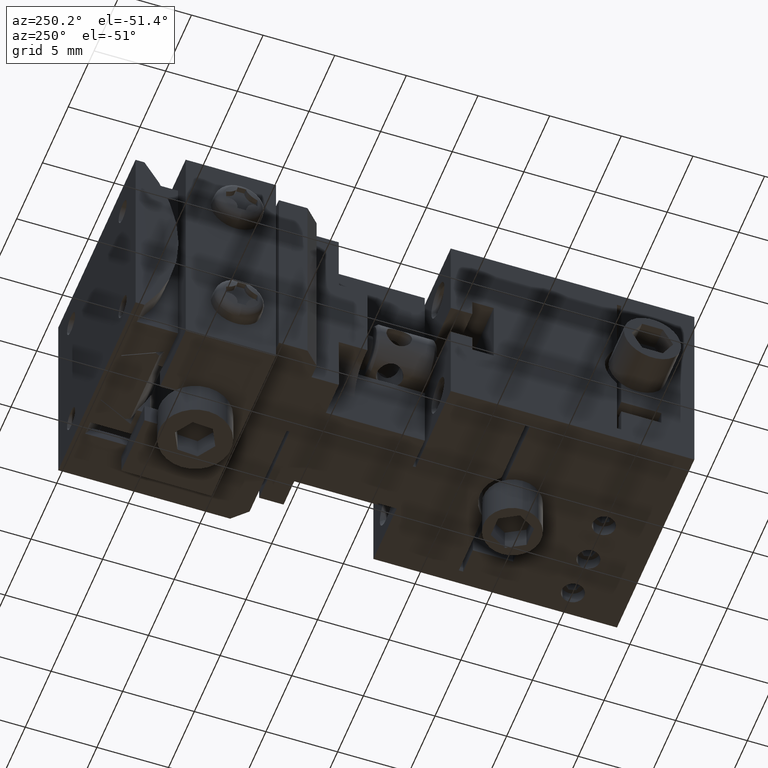
[diagram: clean part render]
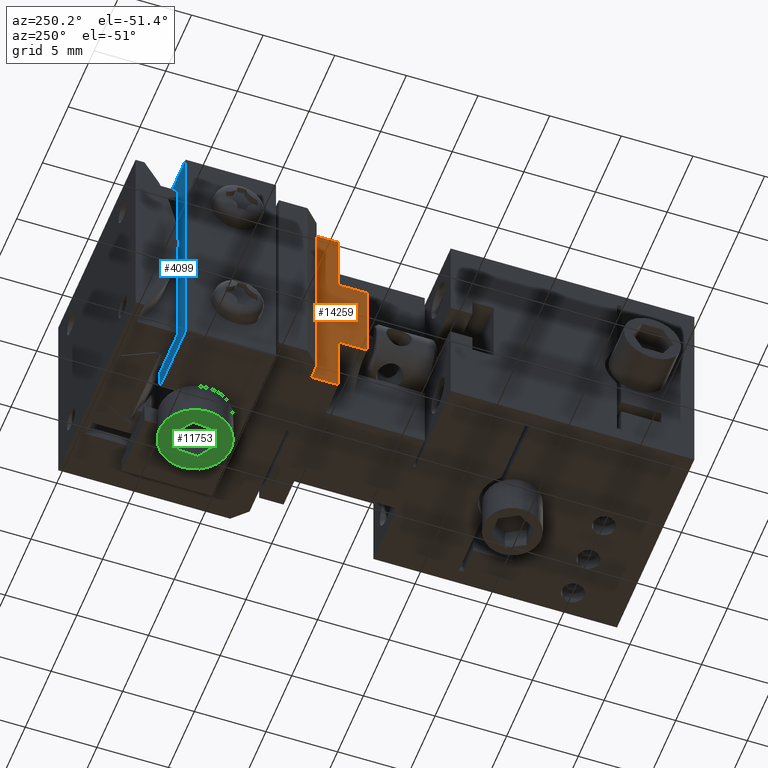
[diagram: same view with three faces highlighted in distinct colors, each labeled with its STEP entity id]
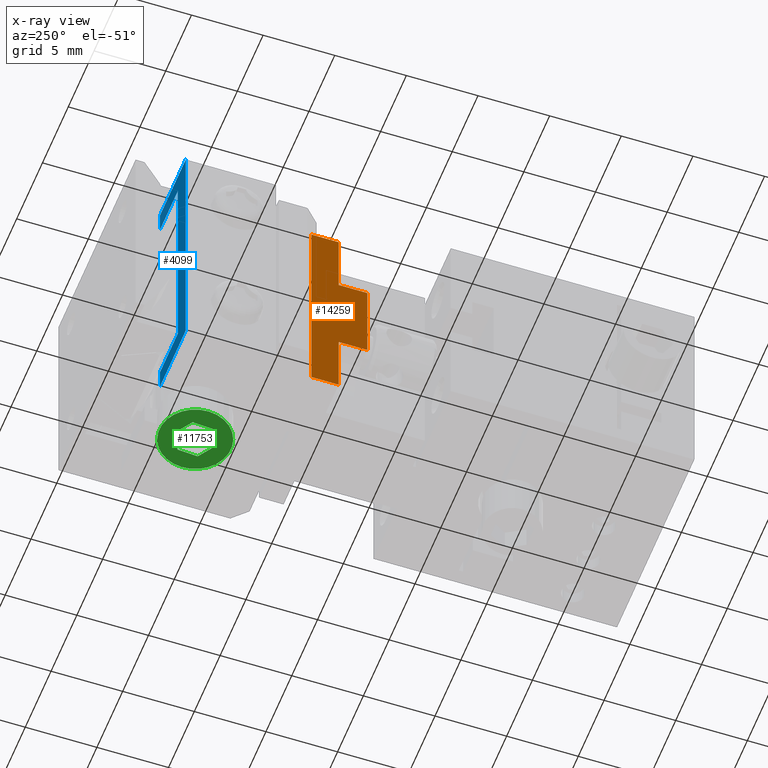
[diagram: x-ray of the same camera — body ghosted, the three highlighted faces saturated]
A machine part, auxiliary view with three faces highlighted in distinct colors.
The next image is the same camera in x-ray (body ghosted, the three faces saturated) — at least one of them is partly hidden behind the body in this view.
Their STEP definitions:

[orange] entity #14259 — the highlighted planar face has unit normal (1, -0, -0).
#746 = CARTESIAN_POINT ( 'NONE',  ( -8.326672999999999728E-16, -6.361093999999999072E-17, 0.000000000000000000 ) ) ;
#1010 = DIRECTION ( 'NONE',  ( 1.000000000000000000, 0.000000000000000000, 0.000000000000000000 ) ) ;
#1693 = ORIENTED_EDGE ( 'NONE', *, *, #15028, .T. ) ;
#2166 = CARTESIAN_POINT ( 'NONE',  ( -2.500000000000000000, -3.000000000000000000, 0.000000000000000000 ) ) ;
#2191 = ORIENTED_EDGE ( 'NONE', *, *, #16659, .T. ) ;
#2663 = VERTEX_POINT ( 'NONE', #15204 ) ;
#2708 = FACE_OUTER_BOUND ( 'NONE', #20242, .T. ) ;
#2846 = PLANE ( 'NONE',  #25429 ) ;
#3212 = EDGE_CURVE ( 'NONE', #8935, #12641, #21702, .T. ) ;
#3660 = VERTEX_POINT ( 'NONE', #2166 ) ;
#3770 = DIRECTION ( 'NONE',  ( 1.000000000000000000, 0.000000000000000000, 0.000000000000000000 ) ) ;
#4613 = CARTESIAN_POINT ( 'NONE',  ( -0.5000000000000000000, 3.000000000000000000, 0.000000000000000000 ) ) ;
#4740 = DIRECTION ( 'NONE',  ( 0.000000000000000000, -1.000000000000000000, 0.000000000000000000 ) ) ;
#4794 = ORIENTED_EDGE ( 'NONE', *, *, #22403, .T. ) ;
#5080 = VERTEX_POINT ( 'NONE', #17567 ) ;
#5568 = ORIENTED_EDGE ( 'NONE', *, *, #3212, .F. ) ;
#5654 = VECTOR ( 'NONE', #3770, 1000.000000000000000 ) ;
#5703 = CARTESIAN_POINT ( 'NONE',  ( -2.500000000000000000, 7.500000000000000000, 0.000000000000000000 ) ) ;
#7433 = DIRECTION ( 'NONE',  ( 0.000000000000000000, -1.000000000000000000, 0.000000000000000000 ) ) ;
#7713 = CARTESIAN_POINT ( 'NONE',  ( -0.5000000000000000000, -3.000000000000000000, 0.000000000000000000 ) ) ;
#8935 = VERTEX_POINT ( 'NONE', #18550 ) ;
#10962 = VECTOR ( 'NONE', #7433, 1000.000000000000000 ) ;
#11015 = VECTOR ( 'NONE', #17571, 1000.000000000000000 ) ;
#11219 = CARTESIAN_POINT ( 'NONE',  ( -4.400000000000000355, 7.500000000000000000, 0.000000000000000000 ) ) ;
#12641 = VERTEX_POINT ( 'NONE', #20766 ) ;
#12706 = LINE ( 'NONE', #4613, #21916 ) ;
#13248 = CARTESIAN_POINT ( 'NONE',  ( -2.500000000000000000, 7.500000000000000000, 0.000000000000000000 ) ) ;
#13308 = CARTESIAN_POINT ( 'NONE',  ( -2.500000000000000000, 3.000000000000000000, 0.000000000000000000 ) ) ;
#13592 = VECTOR ( 'NONE', #1010, 1000.000000000000000 ) ;
#13824 = CARTESIAN_POINT ( 'NONE',  ( -4.400000000000000355, -7.500000000000000000, 0.000000000000000000 ) ) ;
#13934 = DIRECTION ( 'NONE',  ( -1.000000000000000000, 0.000000000000000000, 0.000000000000000000 ) ) ;
#14259 = ADVANCED_FACE ( 'NONE', ( #2708 ), #2846, .F. ) ;
#14995 = ORIENTED_EDGE ( 'NONE', *, *, #20207, .F. ) ;
#15028 = EDGE_CURVE ( 'NONE', #3660, #12641, #15159, .T. ) ;
#15159 = LINE ( 'NONE', #17519, #23347 ) ;
#15204 = CARTESIAN_POINT ( 'NONE',  ( -2.500000000000000000, 7.500000000000000000, 0.000000000000000000 ) ) ;
#15295 = DIRECTION ( 'NONE',  ( 0.000000000000000000, -1.000000000000000000, 0.000000000000000000 ) ) ;
#15818 = DIRECTION ( 'NONE',  ( -1.000000000000000000, 0.000000000000000000, 0.000000000000000000 ) ) ;
#15903 = VERTEX_POINT ( 'NONE', #19425 ) ;
#16659 = EDGE_CURVE ( 'NONE', #5080, #3660, #17653, .T. ) ;
#17007 = ORIENTED_EDGE ( 'NONE', *, *, #22145, .T. ) ;
#17278 = VERTEX_POINT ( 'NONE', #23734 ) ;
#17494 = CARTESIAN_POINT ( 'NONE',  ( -2.500000000000000000, 3.000000000000000000, 0.000000000000000000 ) ) ;
#17519 = CARTESIAN_POINT ( 'NONE',  ( -2.500000000000000000, -3.000000000000000000, 0.000000000000000000 ) ) ;
#17567 = CARTESIAN_POINT ( 'NONE',  ( -0.5000000000000000000, -3.000000000000000000, 0.000000000000000000 ) ) ;
#17571 = DIRECTION ( 'NONE',  ( 0.000000000000000000, -1.000000000000000000, 0.000000000000000000 ) ) ;
#17653 = LINE ( 'NONE', #7713, #18408 ) ;
#17656 = VERTEX_POINT ( 'NONE', #17494 ) ;
#18408 = VECTOR ( 'NONE', #15818, 1000.000000000000000 ) ;
#18436 = DIRECTION ( 'NONE',  ( 0.000000000000000000, 0.000000000000000000, 1.000000000000000000 ) ) ;
#18550 = CARTESIAN_POINT ( 'NONE',  ( -4.400000000000000355, -7.500000000000000000, 0.000000000000000000 ) ) ;
#18957 = LINE ( 'NONE', #13308, #13592 ) ;
#19332 = LINE ( 'NONE', #11219, #10962 ) ;
#19425 = CARTESIAN_POINT ( 'NONE',  ( -4.400000000000000355, 7.500000000000000000, 0.000000000000000000 ) ) ;
#20207 = EDGE_CURVE ( 'NONE', #15903, #8935, #19332, .T. ) ;
#20242 = EDGE_LOOP ( 'NONE', ( #4794, #2191, #1693, #5568, #14995, #25877, #17007, #20474 ) ) ;
#20474 = ORIENTED_EDGE ( 'NONE', *, *, #24247, .T. ) ;
#20766 = CARTESIAN_POINT ( 'NONE',  ( -2.500000000000000000, -7.500000000000000000, 0.000000000000000000 ) ) ;
#21683 = LINE ( 'NONE', #5703, #24558 ) ;
#21702 = LINE ( 'NONE', #13824, #5654 ) ;
#21916 = VECTOR ( 'NONE', #4740, 1000.000000000000000 ) ;
#22145 = EDGE_CURVE ( 'NONE', #2663, #17656, #23206, .T. ) ;
#22359 = DIRECTION ( 'NONE',  ( 1.000000000000000000, 0.000000000000000000, 0.000000000000000000 ) ) ;
#22403 = EDGE_CURVE ( 'NONE', #17278, #5080, #12706, .T. ) ;
#23206 = LINE ( 'NONE', #13248, #11015 ) ;
#23347 = VECTOR ( 'NONE', #15295, 1000.000000000000000 ) ;
#23734 = CARTESIAN_POINT ( 'NONE',  ( -0.5000000000000000000, 3.000000000000000000, 0.000000000000000000 ) ) ;
#24247 = EDGE_CURVE ( 'NONE', #17656, #17278, #18957, .T. ) ;
#24558 = VECTOR ( 'NONE', #13934, 1000.000000000000000 ) ;
#25429 = AXIS2_PLACEMENT_3D ( 'NONE', #746, #18436, #22359 ) ;
#25805 = EDGE_CURVE ( 'NONE', #2663, #15903, #21683, .T. ) ;
#25877 = ORIENTED_EDGE ( 'NONE', *, *, #25805, .F. ) ;

[blue] entity #4099 — the highlighted planar face has unit normal (0, 1, -0).
#145 = DIRECTION ( 'NONE',  ( 0.000000000000000000, -1.000000000000000000, 0.000000000000000000 ) ) ;
#280 = CARTESIAN_POINT ( 'NONE',  ( -7.500000000000000000, 5.000000000000000000, -13.50000000000000000 ) ) ;
#291 = DIRECTION ( 'NONE',  ( 0.000000000000000000, 1.000000000000000000, 0.000000000000000000 ) ) ;
#339 = VECTOR ( 'NONE', #1159, 1000.000000000000000 ) ;
#1071 = VERTEX_POINT ( 'NONE', #23760 ) ;
#1159 = DIRECTION ( 'NONE',  ( 0.000000000000000000, -1.000000000000000000, 0.000000000000000000 ) ) ;
#1204 = CARTESIAN_POINT ( 'NONE',  ( -9.000000000000000000, 1.500000000000000000, -13.50000000000000000 ) ) ;
#1858 = FACE_OUTER_BOUND ( 'NONE', #17833, .T. ) ;
#3217 = CARTESIAN_POINT ( 'NONE',  ( -7.500000000000000000, 2.000000000000000000, -13.50000000000000000 ) ) ;
#3285 = ORIENTED_EDGE ( 'NONE', *, *, #22319, .F. ) ;
#3321 = DIRECTION ( 'NONE',  ( 1.000000000000000000, 0.000000000000000000, 0.000000000000000000 ) ) ;
#3520 = LINE ( 'NONE', #13052, #339 ) ;
#4099 = ADVANCED_FACE ( 'NONE', ( #1858 ), #24129, .T. ) ;
#4138 = CARTESIAN_POINT ( 'NONE',  ( 9.000000000000000000, 6.500000000000000000, -13.50000000000000000 ) ) ;
#4239 = LINE ( 'NONE', #10232, #17737 ) ;
#4532 = VERTEX_POINT ( 'NONE', #16225 ) ;
#4869 = CARTESIAN_POINT ( 'NONE',  ( -9.000000000000000000, 6.500000000000000000, -13.50000000000000000 ) ) ;
#5050 = EDGE_CURVE ( 'NONE', #12093, #21173, #23079, .T. ) ;
#5064 = LINE ( 'NONE', #19459, #6248 ) ;
#5120 = VERTEX_POINT ( 'NONE', #13769 ) ;
#5309 = LINE ( 'NONE', #3217, #9174 ) ;
#5618 = LINE ( 'NONE', #8940, #8033 ) ;
#5997 = EDGE_CURVE ( 'NONE', #1071, #24163, #22282, .T. ) ;
#6181 = DIRECTION ( 'NONE',  ( 0.000000000000000000, 0.000000000000000000, 1.000000000000000000 ) ) ;
#6248 = VECTOR ( 'NONE', #9239, 1000.000000000000000 ) ;
#6995 = CARTESIAN_POINT ( 'NONE',  ( 7.500000000000000000, 5.000000000000000000, -13.50000000000000000 ) ) ;
#7035 = EDGE_CURVE ( 'NONE', #24163, #21173, #5309, .T. ) ;
#7256 = LINE ( 'NONE', #21267, #17211 ) ;
#7716 = VERTEX_POINT ( 'NONE', #21310 ) ;
#8033 = VECTOR ( 'NONE', #17661, 1000.000000000000000 ) ;
#8275 = ORIENTED_EDGE ( 'NONE', *, *, #20632, .F. ) ;
#8708 = LINE ( 'NONE', #23754, #14923 ) ;
#8789 = CARTESIAN_POINT ( 'NONE',  ( -7.500000000000000000, 1.500000000000000000, -13.50000000000000000 ) ) ;
#8940 = CARTESIAN_POINT ( 'NONE',  ( 7.500000000000000000, 2.000000000000000000, -13.50000000000000000 ) ) ;
#9174 = VECTOR ( 'NONE', #21007, 1000.000000000000000 ) ;
#9239 = DIRECTION ( 'NONE',  ( 0.000000000000000000, 1.000000000000000000, 0.000000000000000000 ) ) ;
#10232 = CARTESIAN_POINT ( 'NONE',  ( -9.000000000000000000, 1.500000000000000000, -13.50000000000000000 ) ) ;
#12093 = VERTEX_POINT ( 'NONE', #19653 ) ;
#13052 = CARTESIAN_POINT ( 'NONE',  ( 9.000000000000000000, 6.500000000000000000, -13.50000000000000000 ) ) ;
#13211 = VERTEX_POINT ( 'NONE', #6995 ) ;
#13304 = EDGE_CURVE ( 'NONE', #7716, #24623, #8708, .T. ) ;
#13769 = CARTESIAN_POINT ( 'NONE',  ( 7.500000000000000000, 2.000000000000000000, -13.50000000000000000 ) ) ;
#14773 = CARTESIAN_POINT ( 'NONE',  ( -7.500000000000000000, 2.000000000000000000, -13.50000000000000000 ) ) ;
#14923 = VECTOR ( 'NONE', #3321, 1000.000000000000000 ) ;
#15059 = EDGE_CURVE ( 'NONE', #24927, #24623, #3520, .T. ) ;
#15375 = EDGE_CURVE ( 'NONE', #7716, #5120, #5064, .T. ) ;
#16194 = DIRECTION ( 'NONE',  ( 1.000000000000000000, 0.000000000000000000, 0.000000000000000000 ) ) ;
#16225 = CARTESIAN_POINT ( 'NONE',  ( -9.000000000000000000, 6.500000000000000000, -13.50000000000000000 ) ) ;
#16375 = LINE ( 'NONE', #4869, #19781 ) ;
#16431 = ORIENTED_EDGE ( 'NONE', *, *, #15375, .F. ) ;
#16457 = ORIENTED_EDGE ( 'NONE', *, *, #21150, .F. ) ;
#17211 = VECTOR ( 'NONE', #17470, 1000.000000000000000 ) ;
#17470 = DIRECTION ( 'NONE',  ( -1.000000000000000000, 0.000000000000000000, 0.000000000000000000 ) ) ;
#17661 = DIRECTION ( 'NONE',  ( 0.000000000000000000, 1.000000000000000000, 0.000000000000000000 ) ) ;
#17737 = VECTOR ( 'NONE', #291, 1000.000000000000000 ) ;
#17833 = EDGE_LOOP ( 'NONE', ( #25555, #24266, #16457, #3285, #24528, #25720, #24768, #8275, #19178, #16431 ) ) ;
#17973 = CARTESIAN_POINT ( 'NONE',  ( 2.775557999999999849E-16, 2.039156626506034797, -13.50000000000000000 ) ) ;
#18237 = DIRECTION ( 'NONE',  ( 1.000000000000000000, 0.000000000000000000, 0.000000000000000000 ) ) ;
#19178 = ORIENTED_EDGE ( 'NONE', *, *, #19849, .F. ) ;
#19459 = CARTESIAN_POINT ( 'NONE',  ( 7.500000000000000000, 1.500000000000000000, -13.50000000000000000 ) ) ;
#19653 = CARTESIAN_POINT ( 'NONE',  ( -9.000000000000000000, 1.500000000000000000, -13.50000000000000000 ) ) ;
#19781 = VECTOR ( 'NONE', #18237, 1000.000000000000000 ) ;
#19849 = EDGE_CURVE ( 'NONE', #5120, #13211, #5618, .T. ) ;
#20632 = EDGE_CURVE ( 'NONE', #13211, #1071, #7256, .T. ) ;
#21007 = DIRECTION ( 'NONE',  ( 0.000000000000000000, -1.000000000000000000, 0.000000000000000000 ) ) ;
#21150 = EDGE_CURVE ( 'NONE', #4532, #24927, #16375, .T. ) ;
#21173 = VERTEX_POINT ( 'NONE', #8789 ) ;
#21267 = CARTESIAN_POINT ( 'NONE',  ( 7.500000000000000000, 5.000000000000000000, -13.50000000000000000 ) ) ;
#21310 = CARTESIAN_POINT ( 'NONE',  ( 7.500000000000000000, 1.500000000000000000, -13.50000000000000000 ) ) ;
#21581 = AXIS2_PLACEMENT_3D ( 'NONE', #17973, #6181, #22038 ) ;
#22038 = DIRECTION ( 'NONE',  ( 1.000000000000000000, 0.000000000000000000, 0.000000000000000000 ) ) ;
#22282 = LINE ( 'NONE', #280, #23756 ) ;
#22319 = EDGE_CURVE ( 'NONE', #12093, #4532, #4239, .T. ) ;
#23079 = LINE ( 'NONE', #1204, #24564 ) ;
#23754 = CARTESIAN_POINT ( 'NONE',  ( 7.500000000000000000, 1.500000000000000000, -13.50000000000000000 ) ) ;
#23756 = VECTOR ( 'NONE', #145, 1000.000000000000000 ) ;
#23760 = CARTESIAN_POINT ( 'NONE',  ( -7.500000000000000000, 5.000000000000000000, -13.50000000000000000 ) ) ;
#24129 = PLANE ( 'NONE',  #21581 ) ;
#24163 = VERTEX_POINT ( 'NONE', #14773 ) ;
#24266 = ORIENTED_EDGE ( 'NONE', *, *, #15059, .F. ) ;
#24528 = ORIENTED_EDGE ( 'NONE', *, *, #5050, .T. ) ;
#24564 = VECTOR ( 'NONE', #16194, 1000.000000000000000 ) ;
#24623 = VERTEX_POINT ( 'NONE', #25206 ) ;
#24768 = ORIENTED_EDGE ( 'NONE', *, *, #5997, .F. ) ;
#24927 = VERTEX_POINT ( 'NONE', #4138 ) ;
#25206 = CARTESIAN_POINT ( 'NONE',  ( 9.000000000000000000, 1.500000000000000000, -13.50000000000000000 ) ) ;
#25555 = ORIENTED_EDGE ( 'NONE', *, *, #13304, .T. ) ;
#25720 = ORIENTED_EDGE ( 'NONE', *, *, #7035, .F. ) ;

[green] entity #11753 — the highlighted planar face has unit normal (-0, -0, -1).
#231 = AXIS2_PLACEMENT_3D ( 'NONE', #690, #20328, #8418 ) ;
#433 = VECTOR ( 'NONE', #1163, 1000.000000000000114 ) ;
#493 = VERTEX_POINT ( 'NONE', #15849 ) ;
#606 = LINE ( 'NONE', #24714, #12448 ) ;
#690 = CARTESIAN_POINT ( 'NONE',  ( 11.50000000000000000, 1.120312085385089862, -15.94556259925955111 ) ) ;
#1141 = VERTEX_POINT ( 'NONE', #19950 ) ;
#1163 = DIRECTION ( 'NONE',  ( 0.000000000000000000, 0.06399933507443397729, 0.9979499411844414691 ) ) ;
#1552 = CARTESIAN_POINT ( 'NONE',  ( 11.50000000000000000, 0.09237508333288199647, -15.05958333204859834 ) ) ;
#1570 = CARTESIAN_POINT ( 'NONE',  ( 11.50000000000000000, 1.293624968146959819, -15.85979083486740215 ) ) ;
#1681 = EDGE_CURVE ( 'NONE', #15071, #18979, #4595, .T. ) ;
#2728 = ORIENTED_EDGE ( 'NONE', *, *, #14270, .T. ) ;
#3016 = ORIENTED_EDGE ( 'NONE', *, *, #20654, .T. ) ;
#3743 = LINE ( 'NONE', #11714, #7626 ) ;
#4379 = EDGE_CURVE ( 'NONE', #18979, #20066, #5375, .T. ) ;
#4595 = LINE ( 'NONE', #18224, #19905 ) ;
#5375 = LINE ( 'NONE', #1570, #23700 ) ;
#5619 = EDGE_CURVE ( 'NONE', #1141, #20114, #5752, .T. ) ;
#5752 = CIRCLE ( 'NONE', #17891, 2.500000000000000000 ) ;
#5817 = ORIENTED_EDGE ( 'NONE', *, *, #19341, .T. ) ;
#6031 = DIRECTION ( 'NONE',  ( 0.000000000000000000, 0.8322503332336951276, -0.5544000205919941138 ) ) ;
#6580 = FACE_BOUND ( 'NONE', #10806, .T. ) ;
#6619 = VERTEX_POINT ( 'NONE', #19611 ) ;
#7593 = CARTESIAN_POINT ( 'NONE',  ( 11.50000000000000000, -7.125441000000000051E-14, -16.50000000000000000 ) ) ;
#7626 = VECTOR ( 'NONE', #22194, 1000.000000000000114 ) ;
#8254 = ORIENTED_EDGE ( 'NONE', *, *, #16505, .T. ) ;
#8418 = DIRECTION ( 'NONE',  ( 0.000000000000000000, 1.000000000000000000, 0.000000000000000000 ) ) ;
#8861 = DIRECTION ( 'NONE',  ( 0.000000000000000000, -0.8962496683081300208, -0.4435499205924479660 ) ) ;
#8957 = EDGE_CURVE ( 'NONE', #20114, #1141, #15168, .T. ) ;
#9187 = CARTESIAN_POINT ( 'NONE',  ( 11.50000000000000000, 1.293624968146959819, -15.85979083486740215 ) ) ;
#10806 = EDGE_LOOP ( 'NONE', ( #22246, #12146, #2728, #3016, #8254, #5817 ) ) ;
#11714 = CARTESIAN_POINT ( 'NONE',  ( 11.50000000000000000, -0.09237508333302699159, -17.94041666795164858 ) ) ;
#11753 = ADVANCED_FACE ( 'NONE', ( #13687, #6580 ), #14177, .T. ) ;
#12146 = ORIENTED_EDGE ( 'NONE', *, *, #4379, .T. ) ;
#12448 = VECTOR ( 'NONE', #8861, 1000.000000000000000 ) ;
#12514 = EDGE_LOOP ( 'NONE', ( #14510, #18762 ) ) ;
#12915 = CARTESIAN_POINT ( 'NONE',  ( 11.50000000000000000, 1.201249884814002078, -17.30020750281890329 ) ) ;
#12997 = CARTESIAN_POINT ( 'NONE',  ( 11.50000000000000000, -1.201249884814149960, -15.69979249718130099 ) ) ;
#13129 = DIRECTION ( 'NONE',  ( 0.000000000000000000, 0.8962496683081291327, 0.4435499205924500199 ) ) ;
#13360 = CARTESIAN_POINT ( 'NONE',  ( 11.50000000000000000, -0.09237508333302699159, -17.94041666795164858 ) ) ;
#13687 = FACE_OUTER_BOUND ( 'NONE', #12514, .T. ) ;
#14177 = PLANE ( 'NONE',  #231 ) ;
#14270 = EDGE_CURVE ( 'NONE', #20066, #18274, #606, .T. ) ;
#14510 = ORIENTED_EDGE ( 'NONE', *, *, #8957, .T. ) ;
#15071 = VERTEX_POINT ( 'NONE', #1552 ) ;
#15168 = CIRCLE ( 'NONE', #21023, 2.500000000000000000 ) ;
#15373 = LINE ( 'NONE', #12997, #17621 ) ;
#15450 = DIRECTION ( 'NONE',  ( 0.000000000000000000, 0.8962496683081300208, 0.4435499205924481325 ) ) ;
#15849 = CARTESIAN_POINT ( 'NONE',  ( 11.50000000000000000, -1.201249884814149960, -15.69979249718130099 ) ) ;
#16203 = DIRECTION ( 'NONE',  ( 0.000000000000000000, 0.8962496683081300208, 0.4435499205924481325 ) ) ;
#16505 = EDGE_CURVE ( 'NONE', #6619, #493, #17002, .T. ) ;
#17002 = LINE ( 'NONE', #17387, #433 ) ;
#17387 = CARTESIAN_POINT ( 'NONE',  ( 11.50000000000000000, -1.293624968147101928, -17.14020916513279857 ) ) ;
#17621 = VECTOR ( 'NONE', #13129, 999.9999999999998863 ) ;
#17891 = AXIS2_PLACEMENT_3D ( 'NONE', #7593, #25540, #15450 ) ;
#18178 = DIRECTION ( 'NONE',  ( 1.000000000000000000, -8.258833926908508712E-18, -4.087259963827349497E-18 ) ) ;
#18224 = CARTESIAN_POINT ( 'NONE',  ( 11.50000000000000000, 0.09237508333288199647, -15.05958333204859834 ) ) ;
#18274 = VERTEX_POINT ( 'NONE', #13360 ) ;
#18762 = ORIENTED_EDGE ( 'NONE', *, *, #5619, .T. ) ;
#18979 = VERTEX_POINT ( 'NONE', #9187 ) ;
#19341 = EDGE_CURVE ( 'NONE', #493, #15071, #15373, .T. ) ;
#19611 = CARTESIAN_POINT ( 'NONE',  ( 11.50000000000000000, -1.293624968147101928, -17.14020916513279857 ) ) ;
#19905 = VECTOR ( 'NONE', #6031, 1000.000000000000000 ) ;
#19950 = CARTESIAN_POINT ( 'NONE',  ( 11.50000000000000000, -2.240624170770395995, -17.60887480148112161 ) ) ;
#20066 = VERTEX_POINT ( 'NONE', #12915 ) ;
#20114 = VERTEX_POINT ( 'NONE', #22636 ) ;
#20328 = DIRECTION ( 'NONE',  ( 1.000000000000000000, 0.000000000000000000, 0.000000000000000000 ) ) ;
#20654 = EDGE_CURVE ( 'NONE', #18274, #6619, #3743, .T. ) ;
#21023 = AXIS2_PLACEMENT_3D ( 'NONE', #24073, #18178, #16203 ) ;
#22194 = DIRECTION ( 'NONE',  ( 0.000000000000000000, -0.8322503332336957937, 0.5544000205919928925 ) ) ;
#22246 = ORIENTED_EDGE ( 'NONE', *, *, #1681, .T. ) ;
#22636 = CARTESIAN_POINT ( 'NONE',  ( 11.50000000000000000, 2.240624170770253887, -15.39112519851888017 ) ) ;
#23700 = VECTOR ( 'NONE', #25534, 1000.000000000000114 ) ;
#24073 = CARTESIAN_POINT ( 'NONE',  ( 11.50000000000000000, -7.125441000000000051E-14, -16.50000000000000000 ) ) ;
#24714 = CARTESIAN_POINT ( 'NONE',  ( 11.50000000000000000, 1.201249884814002078, -17.30020750281890329 ) ) ;
#25534 = DIRECTION ( 'NONE',  ( 0.000000000000000000, -0.06399933507443603120, -0.9979499411844413581 ) ) ;
#25540 = DIRECTION ( 'NONE',  ( 1.000000000000000000, -8.258833926908508712E-18, -4.087259963827349497E-18 ) ) ;